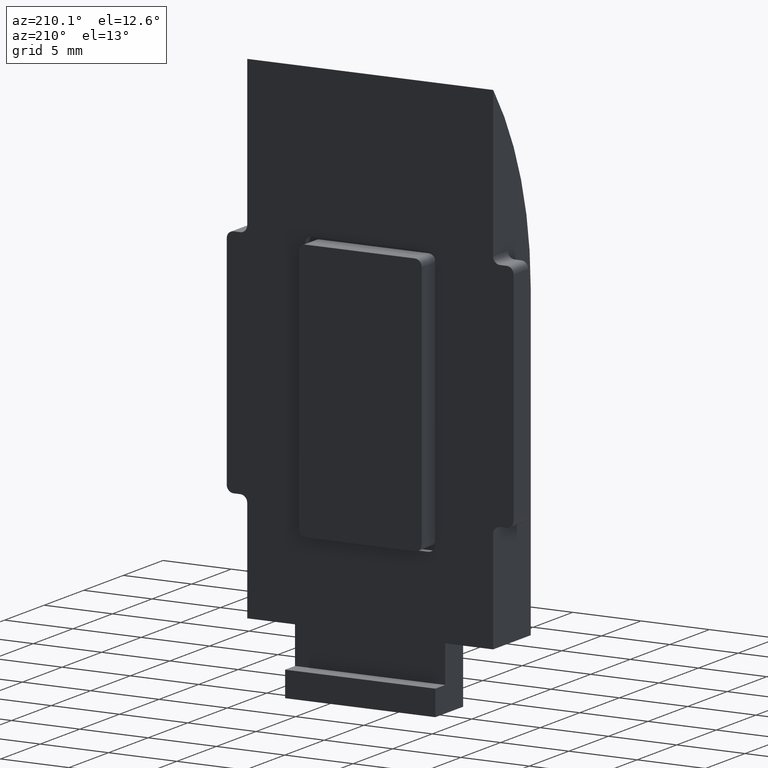
[diagram: clean part render]
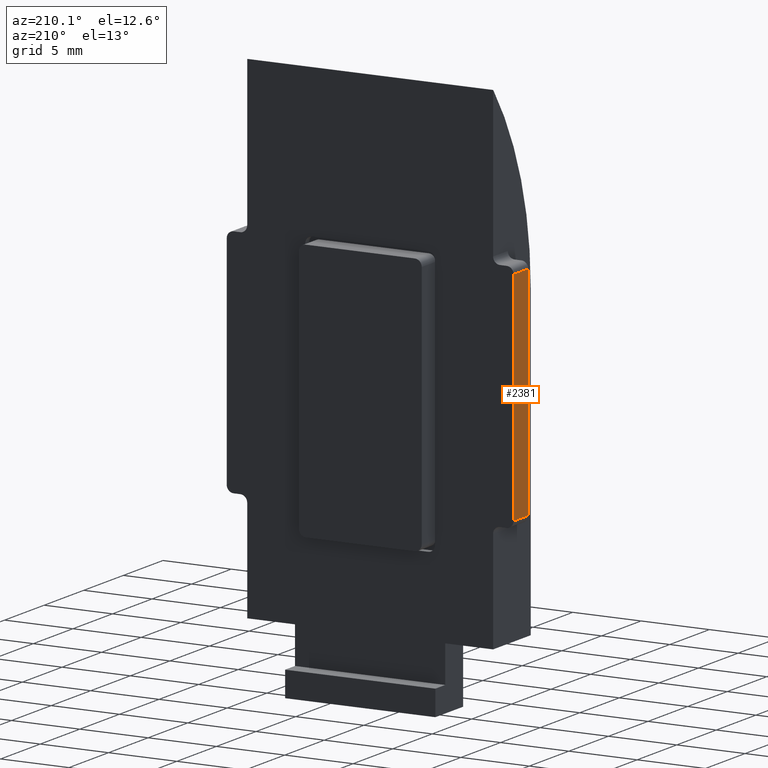
[diagram: same view with one face highlighted and labeled with its STEP entity id]
A machine part, auxiliary view. The second image highlights one B-rep face of the part: STEP entity #2381.
In plain terms, the highlighted planar face has unit normal (1, 0, 0).
Its self-contained STEP definition (entity closure, byte-faithful):
#404 = ORIENTED_EDGE ( 'NONE', *, *, #16795, .T. ) ;
#1764 = CARTESIAN_POINT ( 'NONE',  ( -10.49999999999999822, 2.899999999999988365, 8.499999999999976907 ) ) ;
#1908 = DIRECTION ( 'NONE',  ( 1.000000000000000000, 0.000000000000000000, -0.000000000000000000 ) ) ;
#2017 = FACE_OUTER_BOUND ( 'NONE', #16092, .T. ) ;
#2381 = ADVANCED_FACE ( 'NONE', ( #2017 ), #16721, .F. ) ;
#2720 = LINE ( 'NONE', #6824, #3332 ) ;
#3332 = VECTOR ( 'NONE', #9903, 1000.000000000000000 ) ;
#3743 = CARTESIAN_POINT ( 'NONE',  ( -10.49999999999999822, 4.749999999999995559, 8.499999999999976907 ) ) ;
#4513 = VERTEX_POINT ( 'NONE', #4893 ) ;
#4893 = CARTESIAN_POINT ( 'NONE',  ( -10.49999999999999822, 2.899999999999986589, 24.49999999999997513 ) ) ;
#5277 = VERTEX_POINT ( 'NONE', #9220 ) ;
#5321 = VERTEX_POINT ( 'NONE', #3743 ) ;
#5431 = ORIENTED_EDGE ( 'NONE', *, *, #12861, .T. ) ;
#5910 = EDGE_CURVE ( 'NONE', #4513, #6792, #2720, .T. ) ;
#6006 = CARTESIAN_POINT ( 'NONE',  ( -10.49999999999999822, 2.899999999999988365, 8.499999999999976907 ) ) ;
#6792 = VERTEX_POINT ( 'NONE', #6006 ) ;
#6824 = CARTESIAN_POINT ( 'NONE',  ( -10.49999999999999822, 2.899999999999988365, 7.999999999999976019 ) ) ;
#7492 = LINE ( 'NONE', #15119, #14476 ) ;
#9220 = CARTESIAN_POINT ( 'NONE',  ( -10.49999999999999822, 4.749999999999995559, 24.49999999999997513 ) ) ;
#9804 = DIRECTION ( 'NONE',  ( -0.000000000000000000, 1.000000000000000000, -0.000000000000000000 ) ) ;
#9903 = DIRECTION ( 'NONE',  ( 0.000000000000000000, 1.530638361156006245E-16, -1.000000000000000000 ) ) ;
#9967 = CARTESIAN_POINT ( 'NONE',  ( -10.49999999999999822, 0.000000000000000000, 0.000000000000000000 ) ) ;
#10055 = ORIENTED_EDGE ( 'NONE', *, *, #5910, .F. ) ;
#10802 = LINE ( 'NONE', #1764, #13359 ) ;
#11163 = DIRECTION ( 'NONE',  ( 0.000000000000000000, 0.000000000000000000, 1.000000000000000000 ) ) ;
#11276 = CARTESIAN_POINT ( 'NONE',  ( -10.49999999999999822, 4.749999999999995559, 24.99999999999997868 ) ) ;
#11321 = DIRECTION ( 'NONE',  ( 0.000000000000000000, 0.000000000000000000, 1.000000000000000000 ) ) ;
#11704 = VECTOR ( 'NONE', #11163, 1000.000000000000000 ) ;
#12432 = DIRECTION ( 'NONE',  ( -0.000000000000000000, -1.000000000000000000, 0.000000000000000000 ) ) ;
#12861 = EDGE_CURVE ( 'NONE', #4513, #5277, #7492, .T. ) ;
#13359 = VECTOR ( 'NONE', #12432, 1000.000000000000000 ) ;
#13723 = EDGE_CURVE ( 'NONE', #5321, #5277, #16347, .T. ) ;
#14476 = VECTOR ( 'NONE', #9804, 1000.000000000000000 ) ;
#15119 = CARTESIAN_POINT ( 'NONE',  ( -10.49999999999999822, 4.749999999999995559, 24.49999999999997513 ) ) ;
#15372 = ORIENTED_EDGE ( 'NONE', *, *, #13723, .F. ) ;
#16092 = EDGE_LOOP ( 'NONE', ( #10055, #5431, #15372, #404 ) ) ;
#16347 = LINE ( 'NONE', #11276, #11704 ) ;
#16482 = AXIS2_PLACEMENT_3D ( 'NONE', #9967, #1908, #11321 ) ;
#16721 = PLANE ( 'NONE',  #16482 ) ;
#16795 = EDGE_CURVE ( 'NONE', #5321, #6792, #10802, .T. ) ;